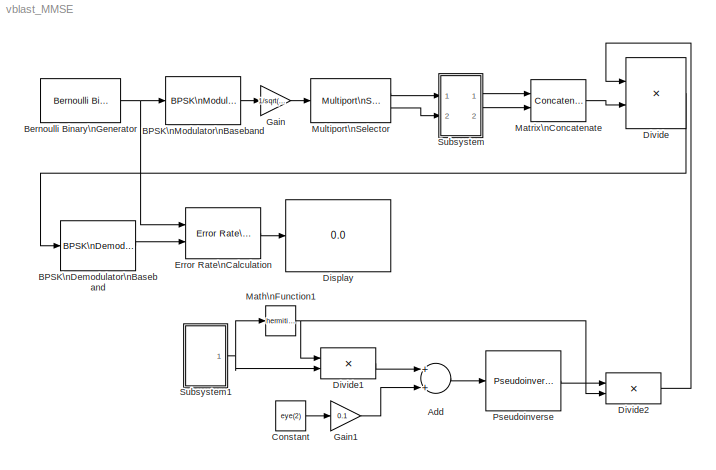
MODEL vblast_MMSE
KIND model
BLOCK [Sum] Add
  InputSameDT = off
  OutDataTypeStr = Inherit: Inherit via internal rule
  Ports = [2, 1]
  SID = 54
  SaturateOnIntegerOverflow = off
BLOCK [Reference] BPSK\nDemodulator\nBaseband  REF=commdigbbndpm3/BPSK\nDemodulator\nBaseband
  DecType = Hard decision
  DialogController = commDDGCreate
  DialogControllerArgs = DataTag0
  Ph = 0
  Ports = [1, 1]
  SID = 45
  SourceBlock = commdigbbndpm3/BPSK\nDemodulator\nBaseband
  SourceType = BPSK Demodulator Baseband
  VarSource = Dialog
  Variance = 1
  derotateFactorDTMode = Same word length as input
  derotateFactorWordLen = 16
  outDtype = Inherit via internal rule
BLOCK [Reference] BPSK\nModulator\nBaseband  REF=commdigbbndpm3/BPSK\nModulator\nBaseband
  DialogController = commDDGCreate
  DialogControllerArgs = DataTag1
  FunctionWithSeparateData = off
  GeneratePreprocessorConditionals = off
  Ph = 0
  Ports = [1, 1]
  RTWMemSecDataConstants = Inherit from model
  RTWMemSecDataInternal = Inherit from model
  RTWMemSecDataParameters = Inherit from model
  RTWMemSecFuncExecute = Inherit from model
  RTWMemSecFuncInitTerm = Inherit from model
  SID = 2
  ShowPortLabels = FromPortIcon
  SourceBlock = commdigbbndpm3/BPSK\nModulator\nBaseband
  SourceType = BPSK Modulator Baseband
  SystemSampleTime = -1
  outDtype = double
  outFracLen = 15
  outFracLenMode = Best precision
  outUDDataType = sfix(16)
  outWordLen = 16
BLOCK [Reference] Bernoulli Binary\nGenerator  REF=commrandsrc2/Bernoulli Binary\nGenerator
  DialogController = commDDGCreate
  DialogControllerArgs = DataTag2
  FunctionWithSeparateData = off
  GeneratePreprocessorConditionals = off
  P = 0.5
  Ports = [0, 1]
  RTWMemSecDataConstants = Inherit from model
  RTWMemSecDataInternal = Inherit from model
  RTWMemSecDataParameters = Inherit from model
  RTWMemSecFuncExecute = Inherit from model
  RTWMemSecFuncInitTerm = Inherit from model
  SID = 1
  ShowPortLabels = FromPortIcon
  SourceBlock = commrandsrc2/Bernoulli Binary\nGenerator
  SourceType = Bernoulli Binary Generator
  SystemSampleTime = -1
  Ts = 1e-6
  frameBased = on
  orient = off
  outDataType = double
  sampPerFrame = 2
  seed = 61
BLOCK [Constant] Constant
  SID = 52
  Value = eye(2)
BLOCK [Display] Display
  Decimation = 1
  Lockdown = off
  Ports = [1]
  SID = 47
BLOCK [Product] Divide
  InputSameDT = off
  Inputs = **
  Multiplication = Matrix(*)
  OutDataTypeStr = Inherit: Inherit via internal rule
  Ports = [2, 1]
  RndMeth = Floor
  SID = 44
  SaturateOnIntegerOverflow = off
BLOCK [Product] Divide1
  InputSameDT = off
  Inputs = **
  Multiplication = Matrix(*)
  OutDataTypeStr = Inherit: Inherit via internal rule
  Ports = [2, 1]
  RndMeth = Floor
  SID = 51
  SaturateOnIntegerOverflow = off
BLOCK [Product] Divide2
  InputSameDT = off
  Inputs = **
  Multiplication = Matrix(*)
  OutDataTypeStr = Inherit: Inherit via internal rule
  Ports = [2, 1]
  RndMeth = Floor
  SID = 55
  SaturateOnIntegerOverflow = off
BLOCK [Reference] Error Rate\nCalculation  REF=commsink2/Error Rate\nCalculation
  N = 0
  PMode = Port
  Ports = [2, 1]
  RsMode2 = off
  SID = 46
  SourceBlock = commsink2/Error Rate\nCalculation
  SourceType = Error Rate Calculation
  WsName = ErrorVec
  cp_mode = Entire frame
  maxBits = 1e6
  numErr = 100
  st_delay = 0
  stop = off
  subframe = []
BLOCK [Gain] Gain
  Gain = 1/sqrt(2)
  OutDataTypeStr = Inherit: Inherit via internal rule
  ParamDataTypeStr = Inherit: Inherit via internal rule
  SID = 13
  SaturateOnIntegerOverflow = off
BLOCK [Gain] Gain1
  Gain = 0.1
  OutDataTypeStr = Inherit: Inherit via internal rule
  ParamDataTypeStr = Inherit: Inherit via internal rule
  SID = 53
  SaturateOnIntegerOverflow = off
BLOCK [Math] Math\nFunction1
  Operator = hermitian
  Ports = [1, 1]
  SID = 50
BLOCK [Concatenate] Matrix\nConcatenate
  Mode = Multidimensional array
  Ports = [2, 1]
  SID = 14
BLOCK [Reference] Multiport\nSelector  REF=dspindex/Multiport\nSelector
  Ports = [1, 2]
  SID = 3
  SourceBlock = dspindex/Multiport\nSelector
  SourceType = Multiport Selector
  idxCellArray = { 1,2 }
  idxErrMode = Clip Index
  rowsOrCols = Rows
BLOCK [Reference] Pseudoinverse  REF=dspinverses/Pseudoinverse
  Ports = [1, 1]
  SID = 43
  SourceBlock = dspinverses/Pseudoinverse
  SourceType = Pseudoinverse
  wanterr = off
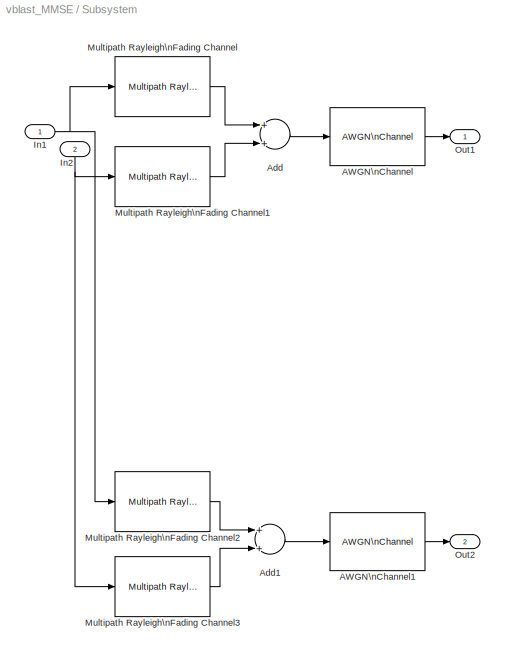
BLOCK [SubSystem] Subsystem
  FunctionWithSeparateData = off
  MaskHideContents = off
  MinAlgLoopOccurrences = off
  Opaque = off
  Ports = [2, 2]
  PropExecContextOutsideSubsystem = off
  RTWSystemCode = Auto
  RequestExecContextInheritance = off
  SID = 30
BLOCK [Reference] Subsystem/AWGN\nChannel  REF=commchan3/AWGN\nChannel
  EbNodB = 10
  EsNodB = 10
  FunctionWithSeparateData = off
  GeneratePreprocessorConditionals = off
  InputProcessing = Columns as channels (frame based)
  Ports = [1, 1]
  Ps = 1
  RTWMemSecDataConstants = Inherit from model
  RTWMemSecDataInternal = Inherit from model
  RTWMemSecDataParameters = Inherit from model
  RTWMemSecFuncExecute = Inherit from model
  RTWMemSecFuncInitTerm = Inherit from model
  SID = 10
  SNRdB = 10
  ShowPortLabels = FromPortIcon
  SourceBlock = commchan3/AWGN\nChannel
  SourceType = AWGN Channel
  SystemSampleTime = -1
  Tsym = 1
  UserData = DataTag3
  UserDataPersistent = on
  bitsPerSym = 1
  noiseMode = Signal to noise ratio  (SNR)
  seed = 67
  variance = 1
BLOCK [Reference] Subsystem/AWGN\nChannel1  REF=commchan3/AWGN\nChannel
  EbNodB = 10
  EsNodB = 10
  FunctionWithSeparateData = off
  GeneratePreprocessorConditionals = off
  InputProcessing = Columns as channels (frame based)
  Ports = [1, 1]
  Ps = 1
  RTWMemSecDataConstants = Inherit from model
  RTWMemSecDataInternal = Inherit from model
  RTWMemSecDataParameters = Inherit from model
  RTWMemSecFuncExecute = Inherit from model
  RTWMemSecFuncInitTerm = Inherit from model
  SID = 12
  SNRdB = 10
  ShowPortLabels = FromPortIcon
  SourceBlock = commchan3/AWGN\nChannel
  SourceType = AWGN Channel
  SystemSampleTime = -1
  Tsym = 1
  UserData = DataTag4
  UserDataPersistent = on
  bitsPerSym = 1
  noiseMode = Signal to noise ratio  (SNR)
  seed = 671
  variance = 1
BLOCK [Sum] Subsystem/Add
  InputSameDT = off
  OutDataTypeStr = Inherit: Inherit via internal rule
  Ports = [2, 1]
  SID = 9
  SaturateOnIntegerOverflow = off
BLOCK [Sum] Subsystem/Add1
  InputSameDT = off
  OutDataTypeStr = Inherit: Inherit via internal rule
  Ports = [2, 1]
  SID = 11
  SaturateOnIntegerOverflow = off
BLOCK [Inport] Subsystem/In1
  IconDisplay = Port number
  SID = 32
BLOCK [Inport] Subsystem/In2
  IconDisplay = Port number
  Port = 2
  SID = 33
BLOCK [Reference] Subsystem/Multipath Rayleigh\nFading Channel  REF=commchan3/Multipath Rayleigh\nFading Channel
  FunctionWithSeparateData = off
  GeneratePreprocessorConditionals = off
  Ports = [1, 1]
  RTWMemSecDataConstants = Inherit from model
  RTWMemSecDataInternal = Inherit from model
  RTWMemSecDataParameters = Inherit from model
  RTWMemSecFuncExecute = Inherit from model
  RTWMemSecFuncInitTerm = Inherit from model
  SID = 4
  ShowPortLabels = FromPortIcon
  SourceBlock = commchan3/Multipath Rayleigh\nFading Channel
  SourceType = Multipath Rayleigh Fading Channel
  SystemSampleTime = -1
  avgPathGaindB = 0
  centerFreqGaussian1 = 0.0
  centerFreqGaussian2 = 0.0
  coeffBell = 9
  coeffRounded = [1 -1.72 0.785]
  dopplerSpectrum = doppler.jakes
  enableProbe = 0
  freqMinMaxAJakes = [0 1]
  freqMinMaxRJakes = [0 1]
  gainGaussian1 = 0.5
  gainGaussian2 = 0.5
  maxDopplerShift = 40
  normalizePathGains = on
  openVisAtStart = off
  outDelay = off
  outPathGains = off
  pathDelays = 0
  seed = 73
  sigmaGaussian = 1/sqrt(2)
  sigmaGaussian1 = 1/sqrt(2)
  sigmaGaussian2 = 1/sqrt(2)
  spectrumType = Jakes
BLOCK [Reference] Subsystem/Multipath Rayleigh\nFading Channel1  REF=commchan3/Multipath Rayleigh\nFading Channel
  FunctionWithSeparateData = off
  GeneratePreprocessorConditionals = off
  Ports = [1, 1]
  RTWMemSecDataConstants = Inherit from model
  RTWMemSecDataInternal = Inherit from model
  RTWMemSecDataParameters = Inherit from model
  RTWMemSecFuncExecute = Inherit from model
  RTWMemSecFuncInitTerm = Inherit from model
  SID = 6
  ShowPortLabels = FromPortIcon
  SourceBlock = commchan3/Multipath Rayleigh\nFading Channel
  SourceType = Multipath Rayleigh Fading Channel
  SystemSampleTime = -1
  avgPathGaindB = 0
  centerFreqGaussian1 = 0.0
  centerFreqGaussian2 = 0.0
  coeffBell = 9
  coeffRounded = [1 -1.72 0.785]
  dopplerSpectrum = doppler.jakes
  enableProbe = 0
  freqMinMaxAJakes = [0 1]
  freqMinMaxRJakes = [0 1]
  gainGaussian1 = 0.5
  gainGaussian2 = 0.5
  maxDopplerShift = 40
  normalizePathGains = on
  openVisAtStart = off
  outDelay = off
  outPathGains = off
  pathDelays = 0
  seed = 731
  sigmaGaussian = 1/sqrt(2)
  sigmaGaussian1 = 1/sqrt(2)
  sigmaGaussian2 = 1/sqrt(2)
  spectrumType = Jakes
BLOCK [Reference] Subsystem/Multipath Rayleigh\nFading Channel2  REF=commchan3/Multipath Rayleigh\nFading Channel
  FunctionWithSeparateData = off
  GeneratePreprocessorConditionals = off
  Ports = [1, 1]
  RTWMemSecDataConstants = Inherit from model
  RTWMemSecDataInternal = Inherit from model
  RTWMemSecDataParameters = Inherit from model
  RTWMemSecFuncExecute = Inherit from model
  RTWMemSecFuncInitTerm = Inherit from model
  SID = 7
  ShowPortLabels = FromPortIcon
  SourceBlock = commchan3/Multipath Rayleigh\nFading Channel
  SourceType = Multipath Rayleigh Fading Channel
  SystemSampleTime = -1
  avgPathGaindB = 0
  centerFreqGaussian1 = 0.0
  centerFreqGaussian2 = 0.0
  coeffBell = 9
  coeffRounded = [1 -1.72 0.785]
  dopplerSpectrum = doppler.jakes
  enableProbe = 0
  freqMinMaxAJakes = [0 1]
  freqMinMaxRJakes = [0 1]
  gainGaussian1 = 0.5
  gainGaussian2 = 0.5
  maxDopplerShift = 40
  normalizePathGains = on
  openVisAtStart = off
  outDelay = off
  outPathGains = off
  pathDelays = 0
  seed = 7311
  sigmaGaussian = 1/sqrt(2)
  sigmaGaussian1 = 1/sqrt(2)
  sigmaGaussian2 = 1/sqrt(2)
  spectrumType = Jakes
BLOCK [Reference] Subsystem/Multipath Rayleigh\nFading Channel3  REF=commchan3/Multipath Rayleigh\nFading Channel
  FunctionWithSeparateData = off
  GeneratePreprocessorConditionals = off
  Ports = [1, 1]
  RTWMemSecDataConstants = Inherit from model
  RTWMemSecDataInternal = Inherit from model
  RTWMemSecDataParameters = Inherit from model
  RTWMemSecFuncExecute = Inherit from model
  RTWMemSecFuncInitTerm = Inherit from model
  SID = 8
  ShowPortLabels = FromPortIcon
  SourceBlock = commchan3/Multipath Rayleigh\nFading Channel
  SourceType = Multipath Rayleigh Fading Channel
  SystemSampleTime = -1
  avgPathGaindB = 0
  centerFreqGaussian1 = 0.0
  centerFreqGaussian2 = 0.0
  coeffBell = 9
  coeffRounded = [1 -1.72 0.785]
  dopplerSpectrum = doppler.jakes
  enableProbe = 0
  freqMinMaxAJakes = [0 1]
  freqMinMaxRJakes = [0 1]
  gainGaussian1 = 0.5
  gainGaussian2 = 0.5
  maxDopplerShift = 40
  normalizePathGains = on
  openVisAtStart = off
  outDelay = off
  outPathGains = off
  pathDelays = 0
  seed = 73111
  sigmaGaussian = 1/sqrt(2)
  sigmaGaussian1 = 1/sqrt(2)
  sigmaGaussian2 = 1/sqrt(2)
  spectrumType = Jakes
BLOCK [Outport] Subsystem/Out1
  IconDisplay = Port number
  SID = 31
BLOCK [Outport] Subsystem/Out2
  IconDisplay = Port number
  Port = 2
  SID = 34
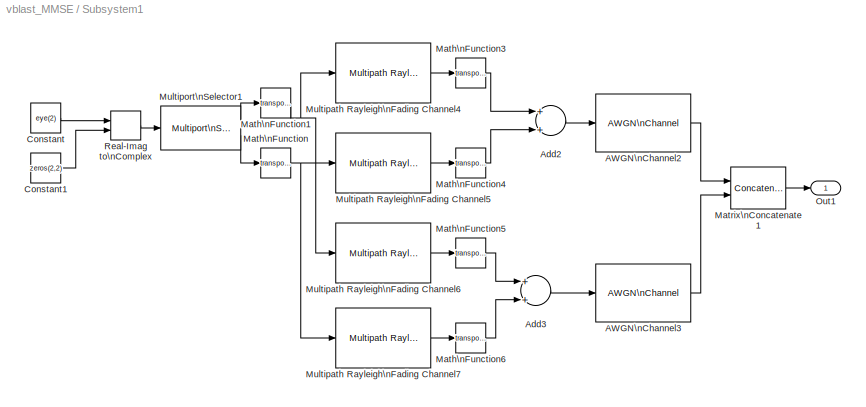
BLOCK [SubSystem] Subsystem1
  FunctionWithSeparateData = off
  MaskHideContents = off
  MinAlgLoopOccurrences = off
  Opaque = off
  Ports = [0, 1]
  PropExecContextOutsideSubsystem = off
  RTWSystemCode = Auto
  RequestExecContextInheritance = off
  SID = 48
BLOCK [Reference] Subsystem1/AWGN\nChannel2  REF=commchan3/AWGN\nChannel
  EbNodB = 10
  EsNodB = 10
  FunctionWithSeparateData = off
  GeneratePreprocessorConditionals = off
  InputProcessing = Columns as channels (frame based)
  Ports = [1, 1]
  Ps = 1
  RTWMemSecDataConstants = Inherit from model
  RTWMemSecDataInternal = Inherit from model
  RTWMemSecDataParameters = Inherit from model
  RTWMemSecFuncExecute = Inherit from model
  RTWMemSecFuncInitTerm = Inherit from model
  SID = 15
  SNRdB = 10
  ShowPortLabels = FromPortIcon
  SourceBlock = commchan3/AWGN\nChannel
  SourceType = AWGN Channel
  SystemSampleTime = -1
  Tsym = 1
  UserData = DataTag5
  UserDataPersistent = on
  bitsPerSym = 1
  noiseMode = Signal to noise ratio  (SNR)
  seed = 67
  variance = 1
BLOCK [Reference] Subsystem1/AWGN\nChannel3  REF=commchan3/AWGN\nChannel
  EbNodB = 10
  EsNodB = 10
  FunctionWithSeparateData = off
  GeneratePreprocessorConditionals = off
  InputProcessing = Columns as channels (frame based)
  Ports = [1, 1]
  Ps = 1
  RTWMemSecDataConstants = Inherit from model
  RTWMemSecDataInternal = Inherit from model
  RTWMemSecDataParameters = Inherit from model
  RTWMemSecFuncExecute = Inherit from model
  RTWMemSecFuncInitTerm = Inherit from model
  SID = 16
  SNRdB = 10
  ShowPortLabels = FromPortIcon
  SourceBlock = commchan3/AWGN\nChannel
  SourceType = AWGN Channel
  SystemSampleTime = -1
  Tsym = 1
  UserData = DataTag6
  UserDataPersistent = on
  bitsPerSym = 1
  noiseMode = Signal to noise ratio  (SNR)
  seed = 671
  variance = 1
BLOCK [Sum] Subsystem1/Add2
  InputSameDT = off
  OutDataTypeStr = Inherit: Inherit via internal rule
  Ports = [2, 1]
  SID = 17
  SaturateOnIntegerOverflow = off
BLOCK [Sum] Subsystem1/Add3
  InputSameDT = off
  OutDataTypeStr = Inherit: Inherit via internal rule
  Ports = [2, 1]
  SID = 18
  SaturateOnIntegerOverflow = off
BLOCK [Constant] Subsystem1/Constant
  SID = 27
  Value = eye(2)
BLOCK [Constant] Subsystem1/Constant1
  SID = 29
  Value = zeros(2,2)
BLOCK [Math] Subsystem1/Math\nFunction
  Operator = transpose
  Ports = [1, 1]
  SID = 35
BLOCK [Math] Subsystem1/Math\nFunction1
  Operator = transpose
  Ports = [1, 1]
  SID = 36
BLOCK [Math] Subsystem1/Math\nFunction3
  Operator = transpose
  Ports = [1, 1]
  SID = 38
BLOCK [Math] Subsystem1/Math\nFunction4
  Operator = transpose
  Ports = [1, 1]
  SID = 39
BLOCK [Math] Subsystem1/Math\nFunction5
  Operator = transpose
  Ports = [1, 1]
  SID = 40
BLOCK [Math] Subsystem1/Math\nFunction6
  Operator = transpose
  Ports = [1, 1]
  SID = 41
BLOCK [Concatenate] Subsystem1/Matrix\nConcatenate1
  Mode = Multidimensional array
  Ports = [2, 1]
  SID = 42
BLOCK [Reference] Subsystem1/Multipath Rayleigh\nFading Channel4  REF=commchan3/Multipath Rayleigh\nFading Channel
  FunctionWithSeparateData = off
  GeneratePreprocessorConditionals = off
  Ports = [1, 1]
  RTWMemSecDataConstants = Inherit from model
  RTWMemSecDataInternal = Inherit from model
  RTWMemSecDataParameters = Inherit from model
  RTWMemSecFuncExecute = Inherit from model
  RTWMemSecFuncInitTerm = Inherit from model
  SID = 22
  ShowPortLabels = FromPortIcon
  SourceBlock = commchan3/Multipath Rayleigh\nFading Channel
  SourceType = Multipath Rayleigh Fading Channel
  SystemSampleTime = -1
  avgPathGaindB = 0
  centerFreqGaussian1 = 0.0
  centerFreqGaussian2 = 0.0
  coeffBell = 9
  coeffRounded = [1 -1.72 0.785]
  dopplerSpectrum = doppler.jakes
  enableProbe = 0
  freqMinMaxAJakes = [0 1]
  freqMinMaxRJakes = [0 1]
  gainGaussian1 = 0.5
  gainGaussian2 = 0.5
  maxDopplerShift = 40
  normalizePathGains = on
  openVisAtStart = off
  outDelay = off
  outPathGains = off
  pathDelays = 0
  seed = 73
  sigmaGaussian = 1/sqrt(2)
  sigmaGaussian1 = 1/sqrt(2)
  sigmaGaussian2 = 1/sqrt(2)
  spectrumType = Jakes
BLOCK [Reference] Subsystem1/Multipath Rayleigh\nFading Channel5  REF=commchan3/Multipath Rayleigh\nFading Channel
  FunctionWithSeparateData = off
  GeneratePreprocessorConditionals = off
  Ports = [1, 1]
  RTWMemSecDataConstants = Inherit from model
  RTWMemSecDataInternal = Inherit from model
  RTWMemSecDataParameters = Inherit from model
  RTWMemSecFuncExecute = Inherit from model
  RTWMemSecFuncInitTerm = Inherit from model
  SID = 23
  ShowPortLabels = FromPortIcon
  SourceBlock = commchan3/Multipath Rayleigh\nFading Channel
  SourceType = Multipath Rayleigh Fading Channel
  SystemSampleTime = -1
  avgPathGaindB = 0
  centerFreqGaussian1 = 0.0
  centerFreqGaussian2 = 0.0
  coeffBell = 9
  coeffRounded = [1 -1.72 0.785]
  dopplerSpectrum = doppler.jakes
  enableProbe = 0
  freqMinMaxAJakes = [0 1]
  freqMinMaxRJakes = [0 1]
  gainGaussian1 = 0.5
  gainGaussian2 = 0.5
  maxDopplerShift = 40
  normalizePathGains = on
  openVisAtStart = off
  outDelay = off
  outPathGains = off
  pathDelays = 0
  seed = 731
  sigmaGaussian = 1/sqrt(2)
  sigmaGaussian1 = 1/sqrt(2)
  sigmaGaussian2 = 1/sqrt(2)
  spectrumType = Jakes
BLOCK [Reference] Subsystem1/Multipath Rayleigh\nFading Channel6  REF=commchan3/Multipath Rayleigh\nFading Channel
  FunctionWithSeparateData = off
  GeneratePreprocessorConditionals = off
  Ports = [1, 1]
  RTWMemSecDataConstants = Inherit from model
  RTWMemSecDataInternal = Inherit from model
  RTWMemSecDataParameters = Inherit from model
  RTWMemSecFuncExecute = Inherit from model
  RTWMemSecFuncInitTerm = Inherit from model
  SID = 24
  ShowPortLabels = FromPortIcon
  SourceBlock = commchan3/Multipath Rayleigh\nFading Channel
  SourceType = Multipath Rayleigh Fading Channel
  SystemSampleTime = -1
  avgPathGaindB = 0
  centerFreqGaussian1 = 0.0
  centerFreqGaussian2 = 0.0
  coeffBell = 9
  coeffRounded = [1 -1.72 0.785]
  dopplerSpectrum = doppler.jakes
  enableProbe = 0
  freqMinMaxAJakes = [0 1]
  freqMinMaxRJakes = [0 1]
  gainGaussian1 = 0.5
  gainGaussian2 = 0.5
  maxDopplerShift = 40
  normalizePathGains = on
  openVisAtStart = off
  outDelay = off
  outPathGains = off
  pathDelays = 0
  seed = 7311
  sigmaGaussian = 1/sqrt(2)
  sigmaGaussian1 = 1/sqrt(2)
  sigmaGaussian2 = 1/sqrt(2)
  spectrumType = Jakes
BLOCK [Reference] Subsystem1/Multipath Rayleigh\nFading Channel7  REF=commchan3/Multipath Rayleigh\nFading Channel
  FunctionWithSeparateData = off
  GeneratePreprocessorConditionals = off
  Ports = [1, 1]
  RTWMemSecDataConstants = Inherit from model
  RTWMemSecDataInternal = Inherit from model
  RTWMemSecDataParameters = Inherit from model
  RTWMemSecFuncExecute = Inherit from model
  RTWMemSecFuncInitTerm = Inherit from model
  SID = 25
  ShowPortLabels = FromPortIcon
  SourceBlock = commchan3/Multipath Rayleigh\nFading Channel
  SourceType = Multipath Rayleigh Fading Channel
  SystemSampleTime = -1
  avgPathGaindB = 0
  centerFreqGaussian1 = 0.0
  centerFreqGaussian2 = 0.0
  coeffBell = 9
  coeffRounded = [1 -1.72 0.785]
  dopplerSpectrum = doppler.jakes
  enableProbe = 0
  freqMinMaxAJakes = [0 1]
  freqMinMaxRJakes = [0 1]
  gainGaussian1 = 0.5
  gainGaussian2 = 0.5
  maxDopplerShift = 40
  normalizePathGains = on
  openVisAtStart = off
  outDelay = off
  outPathGains = off
  pathDelays = 0
  seed = 73111
  sigmaGaussian = 1/sqrt(2)
  sigmaGaussian1 = 1/sqrt(2)
  sigmaGaussian2 = 1/sqrt(2)
  spectrumType = Jakes
BLOCK [Reference] Subsystem1/Multiport\nSelector1  REF=dspindex/Multiport\nSelector
  Ports = [1, 2]
  SID = 26
  SourceBlock = dspindex/Multiport\nSelector
  SourceType = Multiport Selector
  idxCellArray = { 1,2 }
  idxErrMode = Clip Index
  rowsOrCols = Rows
BLOCK [Outport] Subsystem1/Out1
  IconDisplay = Port number
  SID = 49
BLOCK [RealImagToComplex] Subsystem1/Real-Imag to\nComplex
  Input = Real and imag
  Ports = [2, 1]
  SID = 28
LINE Add:1 -> Pseudoinverse:1
LINE BPSK\nDemodulator\nBaseband:1 -> Error Rate\nCalculation:2
LINE BPSK\nModulator\nBaseband:1 -> Gain:1
NET Bernoulli Binary\nGenerator:1 -> BPSK\nModulator\nBaseband:1, Error Rate\nCalculation:1
LINE Constant:1 -> Gain1:1
LINE Divide1:1 -> Add:1
LINE Divide2:1 -> Divide:1
LINE Divide:1 -> BPSK\nDemodulator\nBaseband:1
LINE Error Rate\nCalculation:1 -> Display:1
LINE Gain1:1 -> Add:2
LINE Gain:1 -> Multiport\nSelector:1
NET Math\nFunction1:1 -> Divide1:1, Divide2:2
LINE Matrix\nConcatenate:1 -> Divide:2
LINE Multiport\nSelector:1 -> Subsystem:1
LINE Multiport\nSelector:2 -> Subsystem:2
LINE Pseudoinverse:1 -> Divide2:1
LINE Subsystem/AWGN\nChannel1:1 -> Subsystem/Out2:1
LINE Subsystem/AWGN\nChannel:1 -> Subsystem/Out1:1
LINE Subsystem/Add1:1 -> Subsystem/AWGN\nChannel1:1
LINE Subsystem/Add:1 -> Subsystem/AWGN\nChannel:1
NET Subsystem/In1:1 -> Subsystem/Multipath Rayleigh\nFading Channel2:1, Subsystem/Multipath Rayleigh\nFading Channel:1
NET Subsystem/In2:1 -> Subsystem/Multipath Rayleigh\nFading Channel1:1, Subsystem/Multipath Rayleigh\nFading Channel3:1
LINE Subsystem/Multipath Rayleigh\nFading Channel1:1 -> Subsystem/Add:2
LINE Subsystem/Multipath Rayleigh\nFading Channel2:1 -> Subsystem/Add1:1
LINE Subsystem/Multipath Rayleigh\nFading Channel3:1 -> Subsystem/Add1:2
LINE Subsystem/Multipath Rayleigh\nFading Channel:1 -> Subsystem/Add:1
LINE Subsystem1/AWGN\nChannel2:1 -> Subsystem1/Matrix\nConcatenate1:1
LINE Subsystem1/AWGN\nChannel3:1 -> Subsystem1/Matrix\nConcatenate1:2
LINE Subsystem1/Add2:1 -> Subsystem1/AWGN\nChannel2:1
LINE Subsystem1/Add3:1 -> Subsystem1/AWGN\nChannel3:1
LINE Subsystem1/Constant1:1 -> Subsystem1/Real-Imag to\nComplex:2
LINE Subsystem1/Constant:1 -> Subsystem1/Real-Imag to\nComplex:1
NET Subsystem1/Math\nFunction1:1 -> Subsystem1/Multipath Rayleigh\nFading Channel4:1, Subsystem1/Multipath Rayleigh\nFading Channel6:1
LINE Subsystem1/Math\nFunction3:1 -> Subsystem1/Add2:1
LINE Subsystem1/Math\nFunction4:1 -> Subsystem1/Add2:2
LINE Subsystem1/Math\nFunction5:1 -> Subsystem1/Add3:1
LINE Subsystem1/Math\nFunction6:1 -> Subsystem1/Add3:2
NET Subsystem1/Math\nFunction:1 -> Subsystem1/Multipath Rayleigh\nFading Channel5:1, Subsystem1/Multipath Rayleigh\nFading Channel7:1
LINE Subsystem1/Matrix\nConcatenate1:1 -> Subsystem1/Out1:1
LINE Subsystem1/Multipath Rayleigh\nFading Channel4:1 -> Subsystem1/Math\nFunction3:1
LINE Subsystem1/Multipath Rayleigh\nFading Channel5:1 -> Subsystem1/Math\nFunction4:1
LINE Subsystem1/Multipath Rayleigh\nFading Channel6:1 -> Subsystem1/Math\nFunction5:1
LINE Subsystem1/Multipath Rayleigh\nFading Channel7:1 -> Subsystem1/Math\nFunction6:1
LINE Subsystem1/Multiport\nSelector1:1 -> Subsystem1/Math\nFunction1:1
LINE Subsystem1/Multiport\nSelector1:2 -> Subsystem1/Math\nFunction:1
LINE Subsystem1/Real-Imag to\nComplex:1 -> Subsystem1/Multiport\nSelector1:1
NET Subsystem1:1 -> Divide1:2, Math\nFunction1:1
LINE Subsystem:1 -> Matrix\nConcatenate:1
LINE Subsystem:2 -> Matrix\nConcatenate:2
note: NET lines group one-source signal fan-out (src -> all destinations, sorted); 1:1 wires keep LINE
